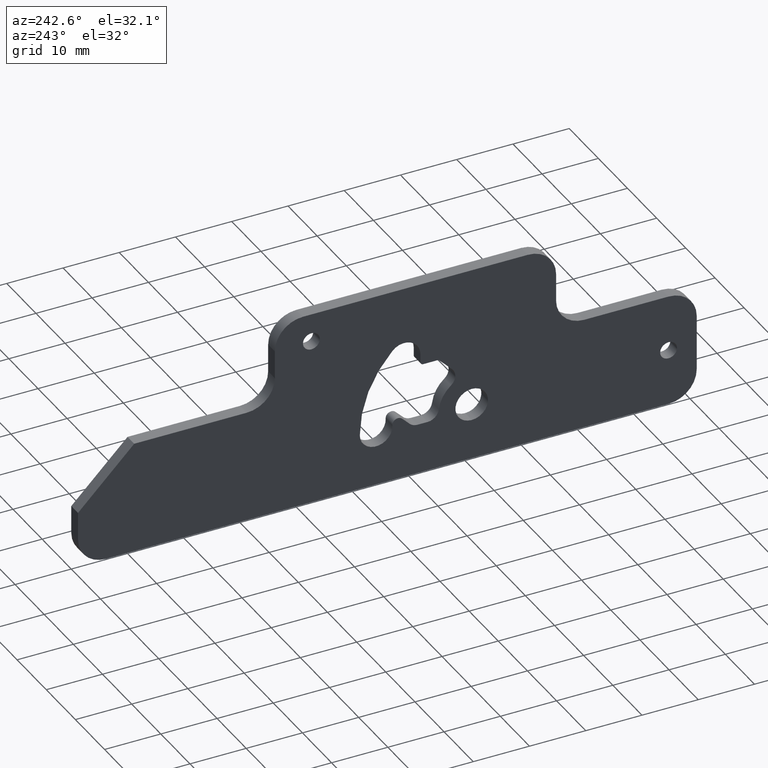
[diagram: clean part render]
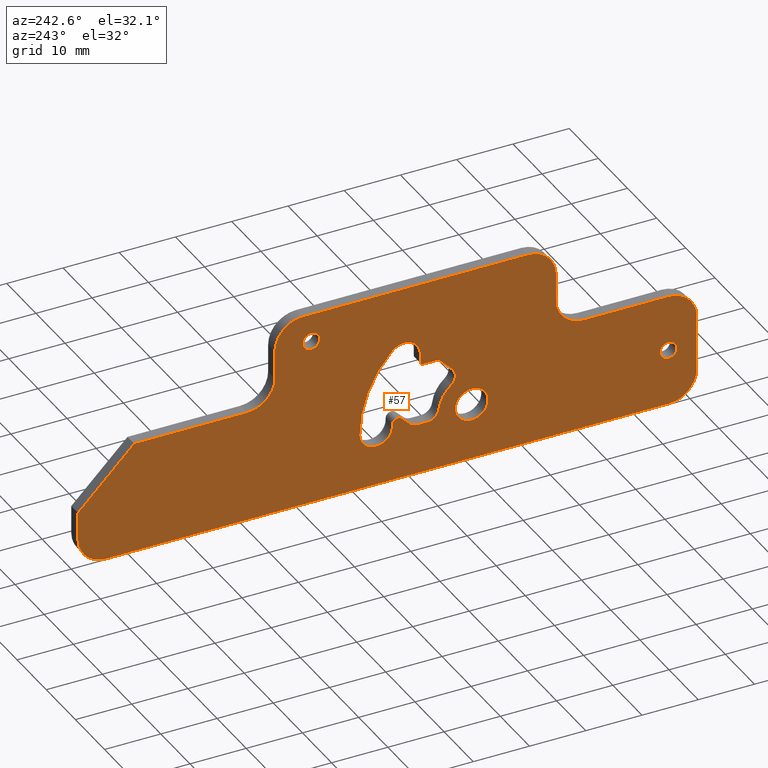
[diagram: same view with one face highlighted and labeled with its STEP entity id]
A machine part, auxiliary view. The second image highlights one B-rep face of the part: STEP entity #57.
In plain terms, the highlighted planar face has unit normal (1, 0, 0).
Its self-contained STEP definition (entity closure, byte-faithful):
#57=ADVANCED_FACE('',(#253,#254,#255,#256,#257),#252,.F.);
#252=PLANE('',#558);
#253=FACE_OUTER_BOUND('',#559,.T.);
#254=FACE_BOUND('',#560,.T.);
#255=FACE_BOUND('',#561,.T.);
#256=FACE_BOUND('',#562,.T.);
#257=FACE_BOUND('',#563,.T.);
#555=CARTESIAN_POINT('',(-2.30000000000E+00,-5.00000000000E+01,-1.35000000000E+01));
#556=DIRECTION('',(1.00000000000E+00,0.00000000000E+00,0.00000000000E+00));
#557=DIRECTION('',(0.00000000000E+00,1.00000000000E+00,0.00000000000E+00));
#558=AXIS2_PLACEMENT_3D('',#555,#556,#557);
#559=EDGE_LOOP('',(#767,#768,#769,#770,#771,#772,#773,#774,#775,#776,#777,#778,#779,#780,#781,#782));
#560=EDGE_LOOP('',(#783,#784));
#561=EDGE_LOOP('',(#785,#786,#787,#788,#789,#790,#791,#792,#793,#794,#795,#796,#797,#798));
#562=EDGE_LOOP('',(#799,#800));
#563=EDGE_LOOP('',(#801,#802));
#767=ORIENTED_EDGE('',*,*,#898,.T.);
#768=ORIENTED_EDGE('',*,*,#902,.T.);
#769=ORIENTED_EDGE('',*,*,#904,.T.);
#770=ORIENTED_EDGE('',*,*,#894,.F.);
#771=ORIENTED_EDGE('',*,*,#888,.T.);
#772=ORIENTED_EDGE('',*,*,#892,.F.);
#773=ORIENTED_EDGE('',*,*,#907,.T.);
#774=ORIENTED_EDGE('',*,*,#910,.T.);
#775=ORIENTED_EDGE('',*,*,#913,.T.);
#776=ORIENTED_EDGE('',*,*,#916,.T.);
#777=ORIENTED_EDGE('',*,*,#919,.T.);
#778=ORIENTED_EDGE('',*,*,#922,.F.);
#779=ORIENTED_EDGE('',*,*,#925,.T.);
#780=ORIENTED_EDGE('',*,*,#928,.F.);
#781=ORIENTED_EDGE('',*,*,#931,.T.);
#782=ORIENTED_EDGE('',*,*,#933,.F.);
#783=ORIENTED_EDGE('',*,*,#957,.T.);
#784=ORIENTED_EDGE('',*,*,#958,.T.);
#785=ORIENTED_EDGE('',*,*,#959,.T.);
#786=ORIENTED_EDGE('',*,*,#960,.T.);
#787=ORIENTED_EDGE('',*,*,#961,.T.);
#788=ORIENTED_EDGE('',*,*,#962,.T.);
#789=ORIENTED_EDGE('',*,*,#963,.F.);
#790=ORIENTED_EDGE('',*,*,#964,.T.);
#791=ORIENTED_EDGE('',*,*,#965,.T.);
#792=ORIENTED_EDGE('',*,*,#966,.T.);
#793=ORIENTED_EDGE('',*,*,#967,.F.);
#794=ORIENTED_EDGE('',*,*,#968,.T.);
#795=ORIENTED_EDGE('',*,*,#969,.T.);
#796=ORIENTED_EDGE('',*,*,#970,.T.);
#797=ORIENTED_EDGE('',*,*,#971,.T.);
#798=ORIENTED_EDGE('',*,*,#972,.F.);
#799=ORIENTED_EDGE('',*,*,#973,.T.);
#800=ORIENTED_EDGE('',*,*,#974,.T.);
#801=ORIENTED_EDGE('',*,*,#975,.T.);
#802=ORIENTED_EDGE('',*,*,#976,.T.);
#888=EDGE_CURVE('',#1012,#1005,#1013,.T.);
#892=EDGE_CURVE('',#1032,#1005,#1039,.T.);
#894=EDGE_CURVE('',#1012,#1052,#1053,.T.);
#898=EDGE_CURVE('',#1080,#1073,#1081,.T.);
#902=EDGE_CURVE('',#1073,#1100,#1107,.T.);
#904=EDGE_CURVE('',#1100,#1052,#1119,.T.);
#907=EDGE_CURVE('',#1032,#1132,#1139,.T.);
#910=EDGE_CURVE('',#1132,#1152,#1159,.T.);
#913=EDGE_CURVE('',#1152,#1172,#1179,.T.);
#916=EDGE_CURVE('',#1172,#1192,#1199,.T.);
#919=EDGE_CURVE('',#1192,#1212,#1219,.T.);
#922=EDGE_CURVE('',#1232,#1212,#1239,.T.);
#925=EDGE_CURVE('',#1232,#1252,#1259,.T.);
#928=EDGE_CURVE('',#1272,#1252,#1279,.T.);
#931=EDGE_CURVE('',#1272,#1292,#1299,.T.);
#933=EDGE_CURVE('',#1080,#1292,#1311,.T.);
#957=EDGE_CURVE('',#1478,#1479,#1480,.T.);
#958=EDGE_CURVE('',#1479,#1478,#1486,.T.);
#959=EDGE_CURVE('',#1492,#1493,#1494,.T.);
#960=EDGE_CURVE('',#1493,#1500,#1501,.T.);
#961=EDGE_CURVE('',#1500,#1507,#1508,.T.);
#962=EDGE_CURVE('',#1507,#1514,#1515,.T.);
#963=EDGE_CURVE('',#1521,#1514,#1522,.T.);
#964=EDGE_CURVE('',#1521,#1528,#1529,.T.);
#965=EDGE_CURVE('',#1528,#1535,#1536,.T.);
#966=EDGE_CURVE('',#1535,#1542,#1543,.T.);
#967=EDGE_CURVE('',#1549,#1542,#1550,.T.);
#968=EDGE_CURVE('',#1549,#1556,#1557,.T.);
#969=EDGE_CURVE('',#1556,#1563,#1564,.T.);
#970=EDGE_CURVE('',#1563,#1570,#1571,.T.);
#971=EDGE_CURVE('',#1570,#1577,#1578,.T.);
#972=EDGE_CURVE('',#1492,#1577,#1584,.T.);
#973=EDGE_CURVE('',#1590,#1591,#1592,.T.);
#974=EDGE_CURVE('',#1591,#1590,#1598,.T.);
#975=EDGE_CURVE('',#1604,#1605,#1606,.T.);
#976=EDGE_CURVE('',#1605,#1604,#1612,.T.);
#1005=VERTEX_POINT('',#1743);
#1012=VERTEX_POINT('',#1747);
#1013=LINE('',#1748,#1749);
#1032=VERTEX_POINT('',#1759);
#1039=CIRCLE('',#1766,5.00000000000E+00);
#1052=VERTEX_POINT('',#1772);
#1053=CIRCLE('',#1776,5.00000000000E+00);
#1073=VERTEX_POINT('',#1785);
#1080=VERTEX_POINT('',#1789);
#1081=LINE('',#1790,#1791);
#1100=VERTEX_POINT('',#1801);
#1107=CIRCLE('',#1808,5.00000000000E+00);
#1119=LINE('',#1812,#1813);
#1132=VERTEX_POINT('',#1819);
#1139=LINE('',#1823,#1824);
#1152=VERTEX_POINT('',#1831);
#1159=CIRCLE('',#1838,5.00000000000E+00);
#1172=VERTEX_POINT('',#1843);
#1179=LINE('',#1847,#1848);
#1192=VERTEX_POINT('',#1854);
#1199=LINE('',#1858,#1859);
#1212=VERTEX_POINT('',#1865);
#1219=LINE('',#1869,#1870);
#1232=VERTEX_POINT('',#1877);
#1239=CIRCLE('',#1884,5.00000000000E+00);
#1252=VERTEX_POINT('',#1889);
#1259=LINE('',#1893,#1894);
#1272=VERTEX_POINT('',#1901);
#1279=CIRCLE('',#1908,5.00000000000E+00);
#1292=VERTEX_POINT('',#1913);
#1299=LINE('',#1917,#1918);
#1311=CIRCLE('',#1927,5.00000000000E+00);
#1478=VERTEX_POINT('',#2038);
#1479=VERTEX_POINT('',#2039);
#1480=CIRCLE('',#2043,1.50000000000E+00);
#1486=CIRCLE('',#2047,1.50000000000E+00);
#1492=VERTEX_POINT('',#2048);
#1493=VERTEX_POINT('',#2049);
#1494=CIRCLE('',#2053,2.90000000000E+00);
#1500=VERTEX_POINT('',#2054);
#1501=CIRCLE('',#2058,1.99000000000E+01);
#1507=VERTEX_POINT('',#2059);
#1508=CIRCLE('',#2063,2.90000000000E+00);
#1514=VERTEX_POINT('',#2064);
#1515=LINE('',#2065,#2066);
#1521=VERTEX_POINT('',#2068);
#1522=CIRCLE('',#2072,5.00000000000E-01);
#1528=VERTEX_POINT('',#2073);
#1529=LINE('',#2074,#2075);
#1535=VERTEX_POINT('',#2077);
#1536=LINE('',#2078,#2079);
#1542=VERTEX_POINT('',#2081);
#1543=CIRCLE('',#2085,2.00000000000E+00);
#1549=VERTEX_POINT('',#2086);
#1550=CIRCLE('',#2090,5.90000000000E+00);
#1556=VERTEX_POINT('',#2091);
#1557=CIRCLE('',#2095,2.00000000000E+00);
#1563=VERTEX_POINT('',#2096);
#1564=LINE('',#2097,#2098);
#1570=VERTEX_POINT('',#2100);
#1571=CIRCLE('',#2104,2.00000000000E+00);
#1577=VERTEX_POINT('',#2105);
#1578=LINE('',#2106,#2107);
#1584=CIRCLE('',#2112,1.00000000000E+00);
#1590=VERTEX_POINT('',#2113);
#1591=VERTEX_POINT('',#2114);
#1592=CIRCLE('',#2118,2.90000000000E+00);
#1598=CIRCLE('',#2122,2.90000000000E+00);
#1604=VERTEX_POINT('',#2123);
#1605=VERTEX_POINT('',#2124);
#1606=CIRCLE('',#2128,1.50000000000E+00);
#1612=CIRCLE('',#2132,1.50000000000E+00);
#1743=CARTESIAN_POINT('',(-2.30000000000E+00,3.00000000000E+01,2.50000000000E+01));
#1747=CARTESIAN_POINT('',(-2.30000000000E+00,-1.00000000000E+01,2.50000000000E+01));
#1748=CARTESIAN_POINT('',(-2.30000000000E+00,-1.00000000000E+01,2.50000000000E+01));
#1749=VECTOR('',#1750,4.00000000000E+01);
#1750=DIRECTION('',(0.00000000000E+00,1.00000000000E+00,0.00000000000E+00));
#1759=CARTESIAN_POINT('',(-2.30000000000E+00,3.50000000000E+01,2.00000000000E+01));
#1763=CARTESIAN_POINT('',(-2.30000000000E+00,3.00000000000E+01,2.00000000000E+01));
#1764=DIRECTION('',(1.00000000000E+00,-0.00000000000E+00,0.00000000000E+00));
#1765=DIRECTION('',(-0.00000000000E+00,-1.00000000000E+00,-0.00000000000E+00));
#1766=AXIS2_PLACEMENT_3D('',#1763,#1764,#1765);
#1772=CARTESIAN_POINT('',(-2.30000000000E+00,-1.50000000000E+01,2.00000000000E+01));
#1773=CARTESIAN_POINT('',(-2.30000000000E+00,-1.00000000000E+01,2.00000000000E+01));
#1774=DIRECTION('',(1.00000000000E+00,-0.00000000000E+00,0.00000000000E+00));
#1775=DIRECTION('',(-0.00000000000E+00,-1.00000000000E+00,-0.00000000000E+00));
#1776=AXIS2_PLACEMENT_3D('',#1773,#1774,#1775);
#1785=CARTESIAN_POINT('',(-2.30000000000E+00,-2.00000000000E+01,1.00000000000E+01));
#1789=CARTESIAN_POINT('',(-2.30000000000E+00,-3.50000000000E+01,1.00000000000E+01));
#1790=CARTESIAN_POINT('',(-2.30000000000E+00,-3.50000000000E+01,1.00000000000E+01));
#1791=VECTOR('',#1792,1.50000000000E+01);
#1792=DIRECTION('',(0.00000000000E+00,1.00000000000E+00,0.00000000000E+00));
#1801=CARTESIAN_POINT('',(-2.30000000000E+00,-1.50000000000E+01,1.50000000000E+01));
#1805=CARTESIAN_POINT('',(-2.30000000000E+00,-2.00000000000E+01,1.50000000000E+01));
#1806=DIRECTION('',(1.00000000000E+00,-0.00000000000E+00,0.00000000000E+00));
#1807=DIRECTION('',(-0.00000000000E+00,-1.00000000000E+00,-0.00000000000E+00));
#1808=AXIS2_PLACEMENT_3D('',#1805,#1806,#1807);
#1812=CARTESIAN_POINT('',(-2.30000000000E+00,-1.50000000000E+01,1.50000000000E+01));
#1813=VECTOR('',#1814,5.00000000000E+00);
#1814=DIRECTION('',(0.00000000000E+00,0.00000000000E+00,1.00000000000E+00));
#1819=CARTESIAN_POINT('',(-2.30000000000E+00,3.50000000000E+01,1.50000000000E+01));
#1823=CARTESIAN_POINT('',(-2.30000000000E+00,3.50000000000E+01,2.00000000000E+01));
#1824=VECTOR('',#1825,5.00000000000E+00);
#1825=DIRECTION('',(0.00000000000E+00,0.00000000000E+00,-1.00000000000E+00));
#1831=CARTESIAN_POINT('',(-2.30000000000E+00,4.00000000000E+01,1.00000000000E+01));
#1835=CARTESIAN_POINT('',(-2.30000000000E+00,4.00000000000E+01,1.50000000000E+01));
#1836=DIRECTION('',(1.00000000000E+00,-0.00000000000E+00,0.00000000000E+00));
#1837=DIRECTION('',(-0.00000000000E+00,-1.00000000000E+00,-0.00000000000E+00));
#1838=AXIS2_PLACEMENT_3D('',#1835,#1836,#1837);
#1843=CARTESIAN_POINT('',(-2.30000000000E+00,6.00000000000E+01,1.00000000000E+01));
#1847=CARTESIAN_POINT('',(-2.30000000000E+00,4.00000000000E+01,1.00000000000E+01));
#1848=VECTOR('',#1849,2.00000000000E+01);
#1849=DIRECTION('',(0.00000000000E+00,1.00000000000E+00,0.00000000000E+00));
#1854=CARTESIAN_POINT('',(-2.30000000000E+00,7.00000000000E+01,0.00000000000E+00));
#1858=CARTESIAN_POINT('',(-2.30000000000E+00,6.00000000000E+01,1.00000000000E+01));
#1859=VECTOR('',#1860,1.41421356237E+01);
#1860=DIRECTION('',(0.00000000000E+00,7.07106781187E-01,-7.07106781187E-01));
#1865=CARTESIAN_POINT('',(-2.30000000000E+00,7.00000000000E+01,-5.00000000000E+00));
#1869=CARTESIAN_POINT('',(-2.30000000000E+00,7.00000000000E+01,0.00000000000E+00));
#1870=VECTOR('',#1871,5.00000000000E+00);
#1871=DIRECTION('',(0.00000000000E+00,0.00000000000E+00,-1.00000000000E+00));
#1877=CARTESIAN_POINT('',(-2.30000000000E+00,6.50000000000E+01,-1.00000000000E+01));
#1881=CARTESIAN_POINT('',(-2.30000000000E+00,6.50000000000E+01,-5.00000000000E+00));
#1882=DIRECTION('',(1.00000000000E+00,-0.00000000000E+00,0.00000000000E+00));
#1883=DIRECTION('',(-0.00000000000E+00,-1.00000000000E+00,-0.00000000000E+00));
#1884=AXIS2_PLACEMENT_3D('',#1881,#1882,#1883);
#1889=CARTESIAN_POINT('',(-2.30000000000E+00,-3.50000000000E+01,-1.00000000000E+01));
#1893=CARTESIAN_POINT('',(-2.30000000000E+00,6.50000000000E+01,-1.00000000000E+01));
#1894=VECTOR('',#1895,1.00000000000E+02);
#1895=DIRECTION('',(0.00000000000E+00,-1.00000000000E+00,0.00000000000E+00));
#1901=CARTESIAN_POINT('',(-2.30000000000E+00,-4.00000000000E+01,-5.00000000000E+00));
#1905=CARTESIAN_POINT('',(-2.30000000000E+00,-3.50000000000E+01,-5.00000000000E+00));
#1906=DIRECTION('',(1.00000000000E+00,-0.00000000000E+00,0.00000000000E+00));
#1907=DIRECTION('',(-0.00000000000E+00,-1.00000000000E+00,-0.00000000000E+00));
#1908=AXIS2_PLACEMENT_3D('',#1905,#1906,#1907);
#1913=CARTESIAN_POINT('',(-2.30000000000E+00,-4.00000000000E+01,5.00000000000E+00));
#1917=CARTESIAN_POINT('',(-2.30000000000E+00,-4.00000000000E+01,-5.00000000000E+00));
#1918=VECTOR('',#1919,1.00000000000E+01);
#1919=DIRECTION('',(0.00000000000E+00,0.00000000000E+00,1.00000000000E+00));
#1924=CARTESIAN_POINT('',(-2.30000000000E+00,-3.50000000000E+01,5.00000000000E+00));
#1925=DIRECTION('',(1.00000000000E+00,-0.00000000000E+00,0.00000000000E+00));
#1926=DIRECTION('',(-0.00000000000E+00,-1.00000000000E+00,-0.00000000000E+00));
#1927=AXIS2_PLACEMENT_3D('',#1924,#1925,#1926);
#2038=CARTESIAN_POINT('',(-2.29999999999E+00,2.85000000000E+01,1.85000000000E+01));
#2039=CARTESIAN_POINT('',(-2.29999999999E+00,2.85000000000E+01,2.15000000000E+01));
#2040=CARTESIAN_POINT('',(-2.29999999999E+00,2.85000000000E+01,2.00000000000E+01));
#2041=DIRECTION('',(1.00000000000E+00,0.00000000000E+00,0.00000000000E+00));
#2042=DIRECTION('',(0.00000000000E+00,-1.22460635382E-16,-1.00000000000E+00));
#2043=AXIS2_PLACEMENT_3D('',#2040,#2041,#2042);
#2044=CARTESIAN_POINT('',(-2.29999999999E+00,2.85000000000E+01,2.00000000000E+01));
#2045=DIRECTION('',(1.00000000000E+00,0.00000000000E+00,0.00000000000E+00));
#2046=DIRECTION('',(0.00000000000E+00,-1.22460635382E-16,-1.00000000000E+00));
#2047=AXIS2_PLACEMENT_3D('',#2044,#2045,#2046);
#2048=CARTESIAN_POINT('',(-2.29999999999E+00,1.41054014124E+01,1.76915281389E-01));
#2049=CARTESIAN_POINT('',(-2.29999999999E+00,1.99000000000E+01,-7.10295143505E-16));
#2050=CARTESIAN_POINT('',(-2.29999999999E+00,1.70000000000E+01,0.00000000000E+00));
#2051=DIRECTION('',(1.00000000000E+00,0.00000000000E+00,0.00000000000E+00));
#2052=DIRECTION('',(-0.00000000000E+00,-0.00000000000E+00,1.00000000000E+00));
#2053=AXIS2_PLACEMENT_3D('',#2050,#2051,#2052);
#2054=CARTESIAN_POINT('',(-2.29999999999E+00,1.40714249456E+01,1.40714249456E+01));
#2055=CARTESIAN_POINT('',(-2.29999999999E+00,0.00000000000E+00,0.00000000000E+00));
#2056=DIRECTION('',(1.00000000000E+00,0.00000000000E+00,0.00000000000E+00));
#2057=DIRECTION('',(-0.00000000000E+00,-0.00000000000E+00,1.00000000000E+00));
#2058=AXIS2_PLACEMENT_3D('',#2055,#2056,#2057);
#2059=CARTESIAN_POINT('',(-2.29999999999E+00,9.12081528017E+00,1.20208152802E+01));
#2060=CARTESIAN_POINT('',(-2.29999999999E+00,1.20208152802E+01,1.20208152802E+01));
#2061=DIRECTION('',(1.00000000000E+00,0.00000000000E+00,0.00000000000E+00));
#2062=DIRECTION('',(-0.00000000000E+00,7.07106781187E-01,7.07106781187E-01));
#2063=AXIS2_PLACEMENT_3D('',#2060,#2061,#2062);
#2064=CARTESIAN_POINT('',(-2.29999999999E+00,9.12081528017E+00,1.05000000000E+01));
#2065=CARTESIAN_POINT('',(-2.30000000000E+00,9.12081528017E+00,1.20208152802E+01));
#2066=VECTOR('',#2067,1.52081528017E+00);
#2067=DIRECTION('',(0.00000000000E+00,-2.24261629674E-13,-1.00000000000E+00));
#2068=CARTESIAN_POINT('',(-2.29999999999E+00,8.62081528017E+00,1.00000000000E+01));
#2069=CARTESIAN_POINT('',(-2.29999999999E+00,8.62081528017E+00,1.05000000000E+01));
#2070=DIRECTION('',(1.00000000000E+00,0.00000000000E+00,0.00000000000E+00));
#2071=DIRECTION('',(-0.00000000000E+00,-0.00000000000E+00,1.00000000000E+00));
#2072=AXIS2_PLACEMENT_3D('',#2069,#2070,#2071);
#2073=CARTESIAN_POINT('',(-2.29999999999E+00,5.89878066912E+00,1.00000000000E+01));
#2074=CARTESIAN_POINT('',(-2.30000000000E+00,8.62081528017E+00,1.00000000000E+01));
#2075=VECTOR('',#2076,2.72203461105E+00);
#2076=DIRECTION('',(0.00000000000E+00,-1.00000000000E+00,0.00000000000E+00));
#2077=CARTESIAN_POINT('',(-2.29999999999E+00,3.49916510476E+00,7.60038443565E+00));
#2078=CARTESIAN_POINT('',(-2.30000000000E+00,5.89878066912E+00,1.00000000000E+01));
#2079=VECTOR('',#2080,3.39356887559E+00);
#2080=DIRECTION('',(0.00000000000E+00,-7.07106781187E-01,-7.07106781187E-01));
#2081=CARTESIAN_POINT('',(-2.29999999999E+00,3.66948533368E+00,4.62005166485E+00));
#2082=CARTESIAN_POINT('',(-2.29999999999E+00,4.91337866714E+00,6.18617087327E+00));
#2083=DIRECTION('',(1.00000000000E+00,0.00000000000E+00,0.00000000000E+00));
#2084=DIRECTION('',(-0.00000000000E+00,-0.00000000000E+00,1.00000000000E+00));
#2085=AXIS2_PLACEMENT_3D('',#2082,#2083,#2084);
#2086=CARTESIAN_POINT('',(-2.29999999999E+00,5.85254105676E+00,7.46835443038E-01));
#2087=CARTESIAN_POINT('',(-2.29999999999E+00,0.00000000000E+00,0.00000000000E+00));
#2088=DIRECTION('',(1.00000000000E+00,0.00000000000E+00,0.00000000000E+00));
#2089=DIRECTION('',(-0.00000000000E+00,-0.00000000000E+00,1.00000000000E+00));
#2090=AXIS2_PLACEMENT_3D('',#2087,#2088,#2089);
#2091=CARTESIAN_POINT('',(-2.29999999999E+00,7.83645327939E+00,-1.00000000000E+00));
#2092=CARTESIAN_POINT('',(-2.29999999999E+00,7.83645327939E+00,1.00000000000E+00));
#2093=DIRECTION('',(1.00000000000E+00,0.00000000000E+00,0.00000000000E+00));
#2094=DIRECTION('',(-0.00000000000E+00,-0.00000000000E+00,1.00000000000E+00));
#2095=AXIS2_PLACEMENT_3D('',#2092,#2093,#2094);
#2096=CARTESIAN_POINT('',(-2.29999999999E+00,9.62670273048E+00,-1.00000000000E+00));
#2097=CARTESIAN_POINT('',(-2.30000000000E+00,7.83645327939E+00,-1.00000000000E+00));
#2098=VECTOR('',#2099,1.79024945109E+00);
#2099=DIRECTION('',(0.00000000000E+00,1.00000000000E+00,0.00000000000E+00));
#2100=CARTESIAN_POINT('',(-2.29999999999E+00,1.10409162928E+01,-4.14213562373E-01));
#2101=CARTESIAN_POINT('',(-2.29999999999E+00,9.62670273048E+00,1.00000000000E+00));
#2102=DIRECTION('',(1.00000000000E+00,0.00000000000E+00,0.00000000000E+00));
#2103=DIRECTION('',(-0.00000000000E+00,-0.00000000000E+00,1.00000000000E+00));
#2104=AXIS2_PLACEMENT_3D('',#2101,#2102,#2103);
#2105=CARTESIAN_POINT('',(-2.29999999999E+00,1.24001571872E+01,9.45027332021E-01));
#2106=CARTESIAN_POINT('',(-2.30000000000E+00,1.10409162928E+01,-4.14213562373E-01));
#2107=VECTOR('',#2108,1.92225690738E+00);
#2108=DIRECTION('',(0.00000000000E+00,7.07106781187E-01,7.07106781187E-01));
#2109=CARTESIAN_POINT('',(-2.29999999999E+00,1.31072639684E+01,2.37920550834E-01));
#2110=DIRECTION('',(1.00000000000E+00,0.00000000000E+00,0.00000000000E+00));
#2111=DIRECTION('',(0.00000000000E+00,9.98137443993E-01,-6.10052694446E-02));
#2112=AXIS2_PLACEMENT_3D('',#2109,#2110,#2111);
#2113=CARTESIAN_POINT('',(-2.29999999999E+00,0.00000000000E+00,-2.90000000000E+00));
#2114=CARTESIAN_POINT('',(-2.29999999999E+00,-1.48029736617E-16,2.90000000000E+00));
#2115=CARTESIAN_POINT('',(-2.29999999999E+00,0.00000000000E+00,0.00000000000E+00));
#2116=DIRECTION('',(1.00000000000E+00,0.00000000000E+00,0.00000000000E+00));
#2117=DIRECTION('',(0.00000000000E+00,-1.22460635382E-16,-1.00000000000E+00));
#2118=AXIS2_PLACEMENT_3D('',#2115,#2116,#2117);
#2119=CARTESIAN_POINT('',(-2.29999999999E+00,0.00000000000E+00,0.00000000000E+00));
#2120=DIRECTION('',(1.00000000000E+00,0.00000000000E+00,0.00000000000E+00));
#2121=DIRECTION('',(0.00000000000E+00,-1.22460635382E-16,-1.00000000000E+00));
#2122=AXIS2_PLACEMENT_3D('',#2119,#2120,#2121);
#2123=CARTESIAN_POINT('',(-2.29999999999E+00,-3.50000000000E+01,-1.50000000000E+00));
#2124=CARTESIAN_POINT('',(-2.29999999999E+00,-3.50000000000E+01,1.50000000000E+00));
#2125=CARTESIAN_POINT('',(-2.29999999999E+00,-3.50000000000E+01,0.00000000000E+00));
#2126=DIRECTION('',(1.00000000000E+00,0.00000000000E+00,0.00000000000E+00));
#2127=DIRECTION('',(0.00000000000E+00,-1.22460635382E-16,-1.00000000000E+00));
#2128=AXIS2_PLACEMENT_3D('',#2125,#2126,#2127);
#2129=CARTESIAN_POINT('',(-2.29999999999E+00,-3.50000000000E+01,0.00000000000E+00));
#2130=DIRECTION('',(1.00000000000E+00,0.00000000000E+00,0.00000000000E+00));
#2131=DIRECTION('',(0.00000000000E+00,-1.22460635382E-16,-1.00000000000E+00));
#2132=AXIS2_PLACEMENT_3D('',#2129,#2130,#2131);